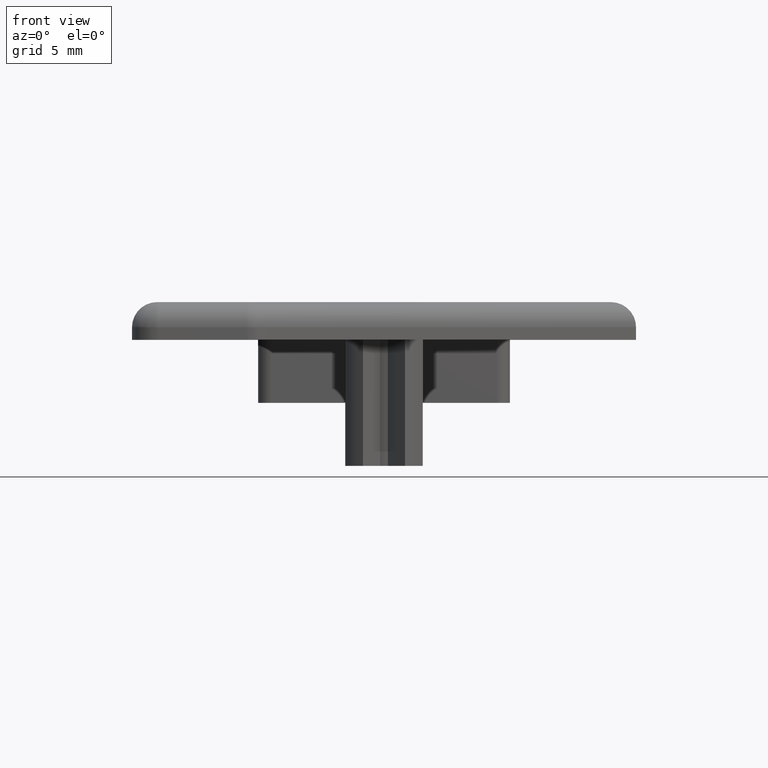
[diagram: clean part render]
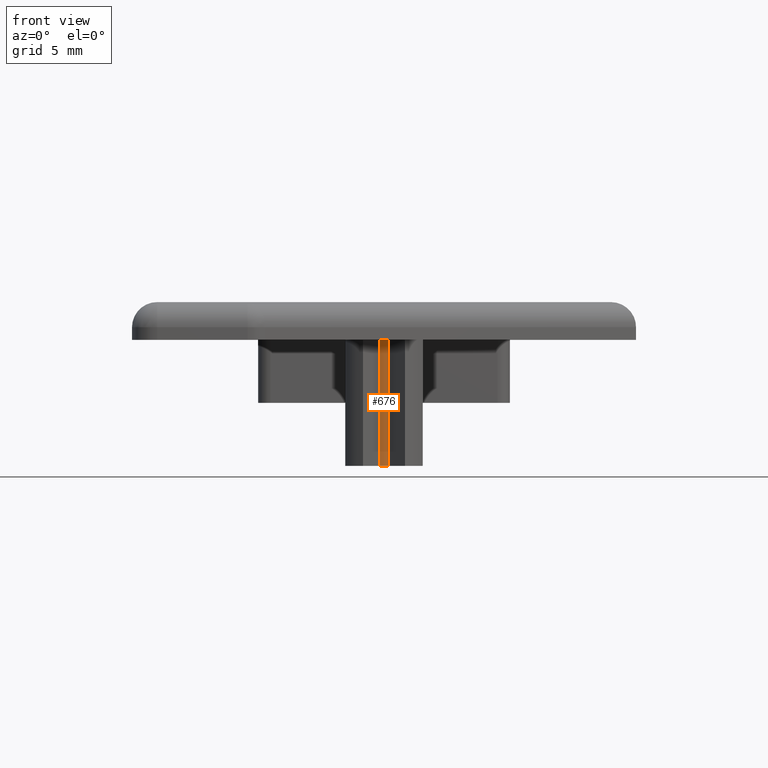
[diagram: same view with one face highlighted and labeled with its STEP entity id]
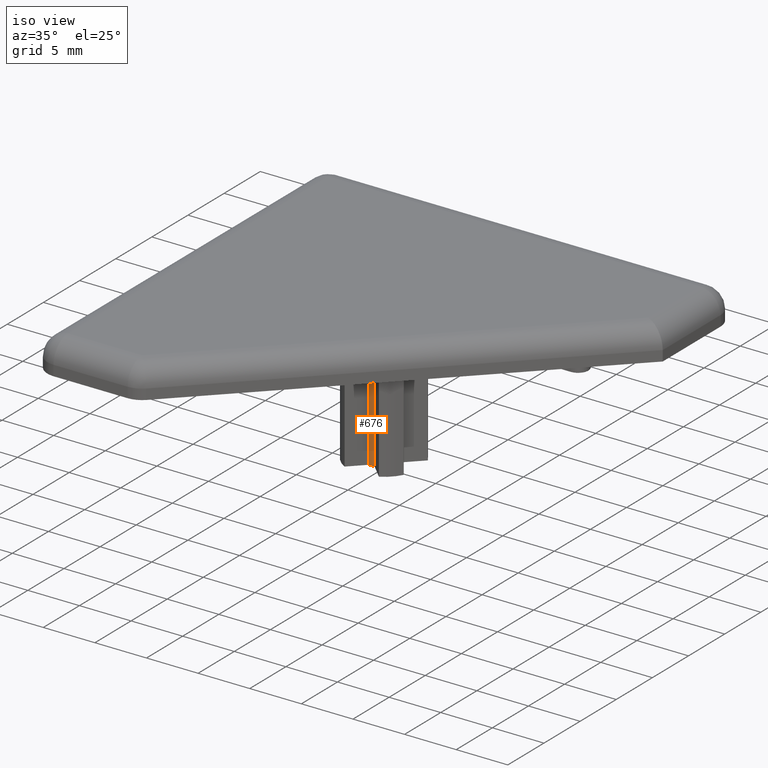
[diagram: same view with one face highlighted and labeled with its STEP entity id]
A machine part, front view. The second image highlights one B-rep face of the part: STEP entity #676.
A second angle (iso view) of the same face is appended — the face is thin or edge-on in the first view.
In plain terms, the highlighted cylindrical surface (edge-blend (fillet) strip) has radius 1.75 mm, axis along (0, 0, -1).
Its self-contained STEP definition (entity closure, byte-faithful):
#42=FACE_OUTER_BOUND($,#83,.T.);
#83=EDGE_LOOP($,(#461,#462,#463,#464));
#129=LINE($,#1037,#193);
#130=LINE($,#1043,#194);
#193=VECTOR($,#812,10.);
#194=VECTOR($,#819,10.);
#255=CIRCLE($,#724,1.75);
#256=CIRCLE($,#725,1.75);
#293=VERTEX_POINT($,#1033);
#294=VERTEX_POINT($,#1035);
#295=VERTEX_POINT($,#1039);
#296=VERTEX_POINT($,#1041);
#358=EDGE_CURVE($,#293,#294,#129,.T.);
#359=EDGE_CURVE($,#293,#295,#255,.T.);
#360=EDGE_CURVE($,#296,#294,#256,.T.);
#361=EDGE_CURVE($,#295,#296,#130,.T.);
#461=ORIENTED_EDGE($,*,*,#359,.F.);
#462=ORIENTED_EDGE($,*,*,#358,.T.);
#463=ORIENTED_EDGE($,*,*,#360,.F.);
#464=ORIENTED_EDGE($,*,*,#361,.F.);
#656=CYLINDRICAL_SURFACE($,#723,1.75);
#676=ADVANCED_FACE($,(#42),#656,.T.);
#723=AXIS2_PLACEMENT_3D($,#1038,#813,#814);
#724=AXIS2_PLACEMENT_3D($,#1040,#815,#816);
#725=AXIS2_PLACEMENT_3D($,#1042,#817,#818);
#812=DIRECTION($,(0.,0.,-1.));
#813=DIRECTION('center_axis',(0.,0.,-1.));
#814=DIRECTION('ref_axis',(0.176227439653113,-0.984349475294881,0.));
#815=DIRECTION('center_axis',(0.,0.,1.));
#816=DIRECTION('ref_axis',(0.176227439653113,-0.984349475294881,0.));
#817=DIRECTION('center_axis',(0.,0.,-1.));
#818=DIRECTION('ref_axis',(0.176227439653113,-0.984349475294881,0.));
#819=DIRECTION($,(0.,0.,-1.));
#1033=CARTESIAN_POINT('',(19.6916019806071,-21.722611581766,0.));
#1035=CARTESIAN_POINT('',(19.6916019806071,-21.722611581766,-10.));
#1037=CARTESIAN_POINT($,(19.6916019806071,-21.722611581766,0.));
#1038=CARTESIAN_POINT('Origin',(20.,-20.,0.));
#1039=CARTESIAN_POINT('',(20.3083980193929,-21.722611581766,0.));
#1040=CARTESIAN_POINT('Origin',(20.,-20.,0.));
#1041=CARTESIAN_POINT('',(20.3083980193929,-21.722611581766,-10.));
#1042=CARTESIAN_POINT('Origin',(20.,-20.,-10.));
#1043=CARTESIAN_POINT($,(20.3083980193929,-21.722611581766,0.));